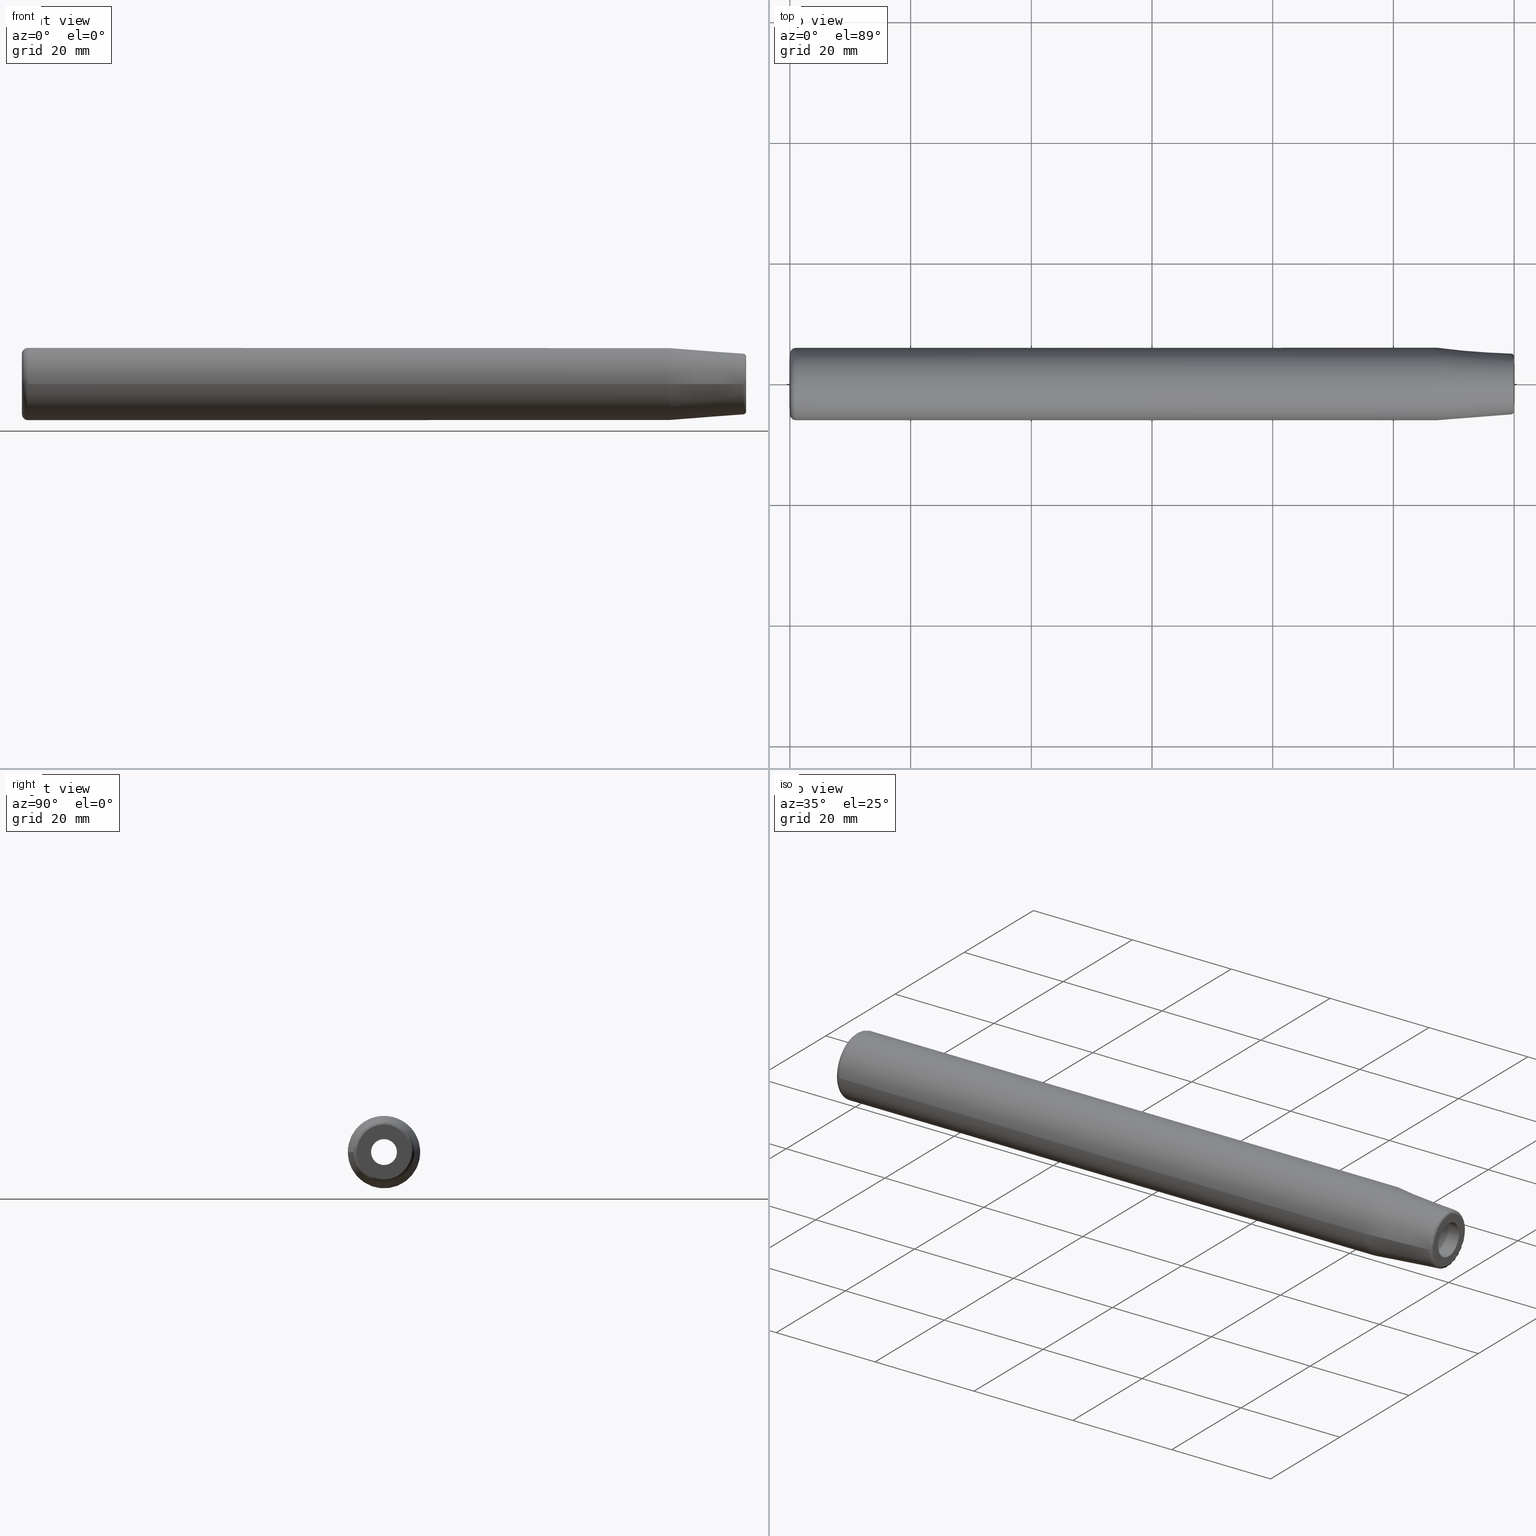
[diagram: canonical four-view strip — front | top / right | iso, engineering-drawing reading convention]
A machine part, canonical four-view strip (front | top / right | iso — engineering-drawing reading convention). The complete STEP part file that produces these views, byte-faithful:
ISO-10303-21;
HEADER;
/* Generated by software containing ST-Developer
 * from STEP Tools, Inc. (www.steptools.com) 
 */

FILE_DESCRIPTION(
/* description */ (''),
/* implementation_level */ '2;1');

FILE_NAME(
/* name */ 
'\\\\SSKT-NAS\\Lab-Data\\\X2\C5F0AD6CC18C\X0\\\DRAWING_3D\\1. \X2\C778BCA4D130\X0\\\
4. LAY-OUT\\OVERSEAS-ORDERS\\SAB\\SHRINK FIT HOLDER\\SFH\\ST TYPE\\VS0
13M.stp',
/* time_stamp */ '2023-06-20T09:31:37+09:00',
/* author */ ('YSH'),
/* organization */ (''),
/* preprocessor_version */ 'ST-DEVELOPER v18.1',
/* originating_system */ 'Autodesk Inventor 2022',
/* authorisation */ '');

FILE_SCHEMA (('AUTOMOTIVE_DESIGN { 1 0 10303 214 3 1 1 }'));
ENDSEC;

DATA;
#10=MECHANICAL_DESIGN_GEOMETRIC_PRESENTATION_REPRESENTATION('',(#13),#381);
#11=SHAPE_REPRESENTATION_RELATIONSHIP('SRR','None',#388,#12);
#12=ADVANCED_BREP_SHAPE_REPRESENTATION('',(#14),#380);
#13=STYLED_ITEM('',(#397),#14);
#14=MANIFOLD_SOLID_BREP('\X2\C194B9ACB4DC\X0\1',#198);
#15=CYLINDRICAL_SURFACE('',#237,6.);
#16=CYLINDRICAL_SURFACE('',#238,2.15);
#17=CYLINDRICAL_SURFACE('',#244,3.5);
#18=CYLINDRICAL_SURFACE('',#245,3.49999999999999);
#19=CYLINDRICAL_SURFACE('',#249,3.);
#20=FACE_BOUND('',#60,.T.);
#21=FACE_BOUND('',#63,.T.);
#22=FACE_BOUND('',#70,.T.);
#23=FACE_BOUND('',#73,.T.);
#24=PLANE('',#228);
#25=PLANE('',#235);
#26=PLANE('',#248);
#27=PLANE('',#251);
#28=LINE('',#334,#35);
#29=LINE('',#351,#36);
#30=LINE('',#356,#37);
#31=LINE('',#363,#38);
#32=LINE('',#365,#39);
#33=LINE('',#370,#40);
#34=LINE('',#375,#41);
#35=VECTOR('',#266,5.5);
#36=VECTOR('',#289,6.);
#37=VECTOR('',#294,2.15);
#38=VECTOR('',#303,1.75);
#39=VECTOR('',#306,3.5);
#40=VECTOR('',#311,3.49999999999999);
#41=VECTOR('',#318,3.);
#42=CONICAL_SURFACE('',#226,5.5,0.0785398163397448);
#43=CONICAL_SURFACE('',#242,1.75,1.02974425867665);
#44=FACE_OUTER_BOUND('',#57,.T.);
#45=FACE_OUTER_BOUND('',#58,.T.);
#46=FACE_OUTER_BOUND('',#59,.T.);
#47=FACE_OUTER_BOUND('',#61,.T.);
#48=FACE_OUTER_BOUND('',#62,.T.);
#49=FACE_OUTER_BOUND('',#64,.T.);
#50=FACE_OUTER_BOUND('',#65,.T.);
#51=FACE_OUTER_BOUND('',#66,.T.);
#52=FACE_OUTER_BOUND('',#67,.T.);
#53=FACE_OUTER_BOUND('',#68,.T.);
#54=FACE_OUTER_BOUND('',#69,.T.);
#55=FACE_OUTER_BOUND('',#71,.T.);
#56=FACE_OUTER_BOUND('',#72,.T.);
#57=EDGE_LOOP('',(#133,#134,#135,#136,#137));
#58=EDGE_LOOP('',(#138,#139,#140,#141,#142));
#59=EDGE_LOOP('',(#143));
#60=EDGE_LOOP('',(#144));
#61=EDGE_LOOP('',(#145,#146,#147,#148,#149));
#62=EDGE_LOOP('',(#150));
#63=EDGE_LOOP('',(#151));
#64=EDGE_LOOP('',(#152,#153,#154,#155,#156));
#65=EDGE_LOOP('',(#157,#158,#159,#160,#161));
#66=EDGE_LOOP('',(#162,#163,#164,#165,#166));
#67=EDGE_LOOP('',(#167,#168,#169,#170));
#68=EDGE_LOOP('',(#171,#172,#173,#174));
#69=EDGE_LOOP('',(#175));
#70=EDGE_LOOP('',(#176));
#71=EDGE_LOOP('',(#177,#178,#179,#180));
#72=EDGE_LOOP('',(#181));
#73=EDGE_LOOP('',(#182));
#74=CIRCLE('',#222,4.5378047541709);
#75=CIRCLE('',#223,0.5);
#76=CIRCLE('',#224,5.03626342103746);
#77=CIRCLE('',#225,5.03626342103746);
#78=CIRCLE('',#227,6.);
#79=CIRCLE('',#229,3.);
#80=CIRCLE('',#231,6.);
#81=CIRCLE('',#232,6.);
#82=CIRCLE('',#233,1.);
#83=CIRCLE('',#234,5.);
#84=CIRCLE('',#236,3.5);
#85=CIRCLE('',#239,2.15);
#86=CIRCLE('',#240,2.15);
#87=CIRCLE('',#241,2.15);
#88=CIRCLE('',#243,3.5);
#89=CIRCLE('',#246,3.49999999999999);
#90=CIRCLE('',#247,3.49999999999999);
#91=CIRCLE('',#250,2.99999999999999);
#92=VERTEX_POINT('',#325);
#93=VERTEX_POINT('',#327);
#94=VERTEX_POINT('',#329);
#95=VERTEX_POINT('',#333);
#96=VERTEX_POINT('',#337);
#97=VERTEX_POINT('',#340);
#98=VERTEX_POINT('',#341);
#99=VERTEX_POINT('',#344);
#100=VERTEX_POINT('',#348);
#101=VERTEX_POINT('',#353);
#102=VERTEX_POINT('',#355);
#103=VERTEX_POINT('',#357);
#104=VERTEX_POINT('',#361);
#105=VERTEX_POINT('',#367);
#106=VERTEX_POINT('',#369);
#107=VERTEX_POINT('',#374);
#108=EDGE_CURVE('',#92,#92,#74,.T.);
#109=EDGE_CURVE('',#92,#93,#75,.T.);
#110=EDGE_CURVE('',#93,#94,#76,.T.);
#111=EDGE_CURVE('',#94,#93,#77,.T.);
#112=EDGE_CURVE('',#94,#95,#28,.T.);
#113=EDGE_CURVE('',#95,#95,#78,.T.);
#114=EDGE_CURVE('',#96,#96,#79,.T.);
#115=EDGE_CURVE('',#97,#98,#80,.T.);
#116=EDGE_CURVE('',#98,#97,#81,.T.);
#117=EDGE_CURVE('',#97,#99,#82,.T.);
#118=EDGE_CURVE('',#99,#99,#83,.T.);
#119=EDGE_CURVE('',#100,#100,#84,.T.);
#120=EDGE_CURVE('',#95,#98,#29,.T.);
#121=EDGE_CURVE('',#101,#101,#85,.T.);
#122=EDGE_CURVE('',#101,#102,#30,.T.);
#123=EDGE_CURVE('',#103,#102,#86,.T.);
#124=EDGE_CURVE('',#102,#103,#87,.T.);
#125=EDGE_CURVE('',#104,#104,#88,.T.);
#126=EDGE_CURVE('',#104,#103,#31,.T.);
#127=EDGE_CURVE('',#100,#104,#32,.T.);
#128=EDGE_CURVE('',#105,#105,#89,.T.);
#129=EDGE_CURVE('',#105,#106,#33,.T.);
#130=EDGE_CURVE('',#106,#106,#90,.T.);
#131=EDGE_CURVE('',#96,#107,#34,.T.);
#132=EDGE_CURVE('',#107,#107,#91,.T.);
#133=ORIENTED_EDGE('',*,*,#108,.T.);
#134=ORIENTED_EDGE('',*,*,#109,.T.);
#135=ORIENTED_EDGE('',*,*,#110,.T.);
#136=ORIENTED_EDGE('',*,*,#111,.T.);
#137=ORIENTED_EDGE('',*,*,#109,.F.);
#138=ORIENTED_EDGE('',*,*,#111,.F.);
#139=ORIENTED_EDGE('',*,*,#112,.T.);
#140=ORIENTED_EDGE('',*,*,#113,.T.);
#141=ORIENTED_EDGE('',*,*,#112,.F.);
#142=ORIENTED_EDGE('',*,*,#110,.F.);
#143=ORIENTED_EDGE('',*,*,#108,.F.);
#144=ORIENTED_EDGE('',*,*,#114,.F.);
#145=ORIENTED_EDGE('',*,*,#115,.T.);
#146=ORIENTED_EDGE('',*,*,#116,.T.);
#147=ORIENTED_EDGE('',*,*,#117,.T.);
#148=ORIENTED_EDGE('',*,*,#118,.T.);
#149=ORIENTED_EDGE('',*,*,#117,.F.);
#150=ORIENTED_EDGE('',*,*,#118,.F.);
#151=ORIENTED_EDGE('',*,*,#119,.T.);
#152=ORIENTED_EDGE('',*,*,#113,.F.);
#153=ORIENTED_EDGE('',*,*,#120,.T.);
#154=ORIENTED_EDGE('',*,*,#115,.F.);
#155=ORIENTED_EDGE('',*,*,#116,.F.);
#156=ORIENTED_EDGE('',*,*,#120,.F.);
#157=ORIENTED_EDGE('',*,*,#121,.F.);
#158=ORIENTED_EDGE('',*,*,#122,.T.);
#159=ORIENTED_EDGE('',*,*,#123,.F.);
#160=ORIENTED_EDGE('',*,*,#124,.F.);
#161=ORIENTED_EDGE('',*,*,#122,.F.);
#162=ORIENTED_EDGE('',*,*,#125,.T.);
#163=ORIENTED_EDGE('',*,*,#126,.T.);
#164=ORIENTED_EDGE('',*,*,#123,.T.);
#165=ORIENTED_EDGE('',*,*,#124,.T.);
#166=ORIENTED_EDGE('',*,*,#126,.F.);
#167=ORIENTED_EDGE('',*,*,#119,.F.);
#168=ORIENTED_EDGE('',*,*,#127,.T.);
#169=ORIENTED_EDGE('',*,*,#125,.F.);
#170=ORIENTED_EDGE('',*,*,#127,.F.);
#171=ORIENTED_EDGE('',*,*,#128,.T.);
#172=ORIENTED_EDGE('',*,*,#129,.T.);
#173=ORIENTED_EDGE('',*,*,#130,.F.);
#174=ORIENTED_EDGE('',*,*,#129,.F.);
#175=ORIENTED_EDGE('',*,*,#130,.T.);
#176=ORIENTED_EDGE('',*,*,#121,.T.);
#177=ORIENTED_EDGE('',*,*,#114,.T.);
#178=ORIENTED_EDGE('',*,*,#131,.T.);
#179=ORIENTED_EDGE('',*,*,#132,.F.);
#180=ORIENTED_EDGE('',*,*,#131,.F.);
#181=ORIENTED_EDGE('',*,*,#128,.F.);
#182=ORIENTED_EDGE('',*,*,#132,.T.);
#183=TOROIDAL_SURFACE('',#221,4.5378047541709,0.5);
#184=TOROIDAL_SURFACE('',#230,5.,1.);
#185=ADVANCED_FACE('',(#44),#183,.T.);
#186=ADVANCED_FACE('',(#45),#42,.T.);
#187=ADVANCED_FACE('',(#46,#20),#24,.T.);
#188=ADVANCED_FACE('',(#47),#184,.T.);
#189=ADVANCED_FACE('',(#48,#21),#25,.T.);
#190=ADVANCED_FACE('',(#49),#15,.T.);
#191=ADVANCED_FACE('',(#50),#16,.F.);
#192=ADVANCED_FACE('',(#51),#43,.F.);
#193=ADVANCED_FACE('',(#52),#17,.F.);
#194=ADVANCED_FACE('',(#53),#18,.F.);
#195=ADVANCED_FACE('',(#54,#22),#26,.T.);
#196=ADVANCED_FACE('',(#55),#19,.F.);
#197=ADVANCED_FACE('',(#56,#23),#27,.T.);
#198=CLOSED_SHELL('',(#185,#186,#187,#188,#189,#190,#191,#192,#193,#194,
#195,#196,#197));
#199=DERIVED_UNIT_ELEMENT(#202,1.);
#200=DERIVED_UNIT_ELEMENT(#383,-3.);
#201=DIMENSIONAL_EXPONENTS(1.,0.,0.,0.,0.,0.,0.);
#202=(
CONVERSION_BASED_UNIT('gram',#204)
MASS_UNIT()
NAMED_UNIT(#201)
);
#203=(
MASS_UNIT()
NAMED_UNIT(*)
SI_UNIT(.KILO.,.GRAM.)
);
#204=MASS_MEASURE_WITH_UNIT(MASS_MEASURE(0.001),#203);
#205=DERIVED_UNIT((#199,#200));
#206=MEASURE_REPRESENTATION_ITEM('density measure',
POSITIVE_RATIO_MEASURE(1.),#205);
#207=PROPERTY_DEFINITION_REPRESENTATION(#212,#209);
#208=PROPERTY_DEFINITION_REPRESENTATION(#213,#210);
#209=REPRESENTATION('material name',(#211),#380);
#210=REPRESENTATION('density',(#206),#380);
#211=DESCRIPTIVE_REPRESENTATION_ITEM('\X2\C77CBC18\X0\','\X2\C77CBC18\X0\');
#212=PROPERTY_DEFINITION('material property','material name',#390);
#213=PROPERTY_DEFINITION('material property','density of part',#390);
#214=DATE_TIME_ROLE('creation_date');
#215=APPLIED_DATE_AND_TIME_ASSIGNMENT(#216,#214,(#390));
#216=DATE_AND_TIME(#217,#218);
#217=CALENDAR_DATE(2022,7,9);
#218=LOCAL_TIME(0,0,0.,#219);
#219=COORDINATED_UNIVERSAL_TIME_OFFSET(0,0,.BEHIND.);
#220=AXIS2_PLACEMENT_3D('placement',#323,#252,#253);
#221=AXIS2_PLACEMENT_3D('',#324,#254,#255);
#222=AXIS2_PLACEMENT_3D('',#326,#256,#257);
#223=AXIS2_PLACEMENT_3D('',#328,#258,#259);
#224=AXIS2_PLACEMENT_3D('',#330,#260,#261);
#225=AXIS2_PLACEMENT_3D('',#331,#262,#263);
#226=AXIS2_PLACEMENT_3D('',#332,#264,#265);
#227=AXIS2_PLACEMENT_3D('',#335,#267,#268);
#228=AXIS2_PLACEMENT_3D('',#336,#269,#270);
#229=AXIS2_PLACEMENT_3D('',#338,#271,#272);
#230=AXIS2_PLACEMENT_3D('',#339,#273,#274);
#231=AXIS2_PLACEMENT_3D('',#342,#275,#276);
#232=AXIS2_PLACEMENT_3D('',#343,#277,#278);
#233=AXIS2_PLACEMENT_3D('',#345,#279,#280);
#234=AXIS2_PLACEMENT_3D('',#346,#281,#282);
#235=AXIS2_PLACEMENT_3D('',#347,#283,#284);
#236=AXIS2_PLACEMENT_3D('',#349,#285,#286);
#237=AXIS2_PLACEMENT_3D('',#350,#287,#288);
#238=AXIS2_PLACEMENT_3D('',#352,#290,#291);
#239=AXIS2_PLACEMENT_3D('',#354,#292,#293);
#240=AXIS2_PLACEMENT_3D('',#358,#295,#296);
#241=AXIS2_PLACEMENT_3D('',#359,#297,#298);
#242=AXIS2_PLACEMENT_3D('',#360,#299,#300);
#243=AXIS2_PLACEMENT_3D('',#362,#301,#302);
#244=AXIS2_PLACEMENT_3D('',#364,#304,#305);
#245=AXIS2_PLACEMENT_3D('',#366,#307,#308);
#246=AXIS2_PLACEMENT_3D('',#368,#309,#310);
#247=AXIS2_PLACEMENT_3D('',#371,#312,#313);
#248=AXIS2_PLACEMENT_3D('',#372,#314,#315);
#249=AXIS2_PLACEMENT_3D('',#373,#316,#317);
#250=AXIS2_PLACEMENT_3D('',#376,#319,#320);
#251=AXIS2_PLACEMENT_3D('',#377,#321,#322);
#252=DIRECTION('axis',(0.,0.,1.));
#253=DIRECTION('refdir',(1.,0.,0.));
#254=DIRECTION('center_axis',(1.,0.,0.));
#255=DIRECTION('ref_axis',(0.,0.,-1.));
#256=DIRECTION('center_axis',(-1.,0.,0.));
#257=DIRECTION('ref_axis',(0.,-1.,1.83697019872103E-16));
#258=DIRECTION('center_axis',(0.,-1.,-1.22464679914735E-16));
#259=DIRECTION('ref_axis',(0.,-1.22464679914735E-16,1.));
#260=DIRECTION('center_axis',(1.,0.,0.));
#261=DIRECTION('ref_axis',(0.,-1.,3.06161699786838E-17));
#262=DIRECTION('center_axis',(1.,0.,0.));
#263=DIRECTION('ref_axis',(0.,-1.,3.06161699786838E-17));
#264=DIRECTION('center_axis',(-1.,0.,0.));
#265=DIRECTION('ref_axis',(0.,1.,0.));
#266=DIRECTION('',(-0.996917333733128,-0.0784590957278449,-9.60846804471011E-18));
#267=DIRECTION('center_axis',(1.,0.,0.));
#268=DIRECTION('ref_axis',(0.,0.,-1.));
#269=DIRECTION('center_axis',(1.,0.,0.));
#270=DIRECTION('ref_axis',(0.,0.,-1.));
#271=DIRECTION('center_axis',(1.,0.,0.));
#272=DIRECTION('ref_axis',(0.,0.,-1.));
#273=DIRECTION('center_axis',(1.,0.,0.));
#274=DIRECTION('ref_axis',(0.,0.,-1.));
#275=DIRECTION('center_axis',(-1.,0.,0.));
#276=DIRECTION('ref_axis',(0.,-1.,1.83697019872103E-16));
#277=DIRECTION('center_axis',(-1.,0.,0.));
#278=DIRECTION('ref_axis',(0.,-1.,1.83697019872103E-16));
#279=DIRECTION('center_axis',(0.,-1.,-1.22464679914735E-16));
#280=DIRECTION('ref_axis',(0.,-1.22464679914735E-16,1.));
#281=DIRECTION('center_axis',(1.,0.,0.));
#282=DIRECTION('ref_axis',(0.,-1.,1.83697019872103E-16));
#283=DIRECTION('center_axis',(-1.,0.,0.));
#284=DIRECTION('ref_axis',(0.,0.,1.));
#285=DIRECTION('center_axis',(1.,0.,0.));
#286=DIRECTION('ref_axis',(0.,0.,1.));
#287=DIRECTION('center_axis',(1.,0.,0.));
#288=DIRECTION('ref_axis',(0.,1.,0.));
#289=DIRECTION('',(-1.,0.,0.));
#290=DIRECTION('center_axis',(1.,0.,0.));
#291=DIRECTION('ref_axis',(0.,0.,-1.));
#292=DIRECTION('center_axis',(-1.,0.,0.));
#293=DIRECTION('ref_axis',(0.,0.,-1.));
#294=DIRECTION('',(-1.,0.,0.));
#295=DIRECTION('center_axis',(1.,0.,0.));
#296=DIRECTION('ref_axis',(0.,0.,-1.));
#297=DIRECTION('center_axis',(1.,0.,0.));
#298=DIRECTION('ref_axis',(0.,0.,-1.));
#299=DIRECTION('center_axis',(-1.,0.,0.));
#300=DIRECTION('ref_axis',(0.,0.,1.));
#301=DIRECTION('center_axis',(-1.,0.,0.));
#302=DIRECTION('ref_axis',(0.,0.,1.));
#303=DIRECTION('',(0.515038074910054,1.04972719113862E-16,0.857167300702112));
#304=DIRECTION('center_axis',(-1.,0.,0.));
#305=DIRECTION('ref_axis',(0.,0.,1.));
#306=DIRECTION('',(1.,0.,0.));
#307=DIRECTION('center_axis',(1.,0.,0.));
#308=DIRECTION('ref_axis',(0.,1.,0.));
#309=DIRECTION('center_axis',(1.,0.,0.));
#310=DIRECTION('ref_axis',(0.,0.,-1.));
#311=DIRECTION('',(-1.,0.,0.));
#312=DIRECTION('center_axis',(1.,0.,0.));
#313=DIRECTION('ref_axis',(0.,0.,-1.));
#314=DIRECTION('center_axis',(1.,0.,0.));
#315=DIRECTION('ref_axis',(0.,0.,-1.));
#316=DIRECTION('center_axis',(1.,0.,0.));
#317=DIRECTION('ref_axis',(0.,1.,0.));
#318=DIRECTION('',(-1.,0.,0.));
#319=DIRECTION('center_axis',(1.,0.,0.));
#320=DIRECTION('ref_axis',(0.,0.,-1.));
#321=DIRECTION('center_axis',(-1.,0.,0.));
#322=DIRECTION('ref_axis',(0.,0.,1.));
#323=CARTESIAN_POINT('',(0.,0.,0.));
#324=CARTESIAN_POINT('Origin',(119.5,0.,0.));
#325=CARTESIAN_POINT('',(120.,-5.55720806735103E-16,4.5378047541709));
#326=CARTESIAN_POINT('Origin',(120.,0.,0.));
#327=CARTESIAN_POINT('',(119.539229547864,-6.16764387823642E-16,5.03626342103746));
#328=CARTESIAN_POINT('Origin',(119.5,-5.55720806735103E-16,4.5378047541709));
#329=CARTESIAN_POINT('',(119.539229547864,-5.03626342103746,-6.16764387823643E-16));
#330=CARTESIAN_POINT('Origin',(119.539229547864,0.,-7.70955484779553E-16));
#331=CARTESIAN_POINT('Origin',(119.539229547864,0.,-7.70955484779553E-16));
#332=CARTESIAN_POINT('Origin',(113.646897631913,0.,0.));
#333=CARTESIAN_POINT('',(107.293795263825,-6.,-7.34788079488412E-16));
#334=CARTESIAN_POINT('',(113.646897631913,-5.5,-6.73555739531044E-16));
#335=CARTESIAN_POINT('Origin',(107.293795263825,0.,0.));
#336=CARTESIAN_POINT('Origin',(120.,3.,0.));
#337=CARTESIAN_POINT('',(120.,-3.,-3.67394039744205E-16));
#338=CARTESIAN_POINT('Origin',(120.,0.,0.));
#339=CARTESIAN_POINT('Origin',(0.999999999999996,0.,0.));
#340=CARTESIAN_POINT('',(0.999999999999996,-7.34788079488412E-16,6.));
#341=CARTESIAN_POINT('',(0.999999999999996,-6.,-7.34788079488412E-16));
#342=CARTESIAN_POINT('Origin',(0.999999999999996,0.,0.));
#343=CARTESIAN_POINT('Origin',(0.999999999999996,0.,0.));
#344=CARTESIAN_POINT('',(0.,-6.12323399573677E-16,5.));
#345=CARTESIAN_POINT('Origin',(0.999999999999996,-6.12323399573677E-16,
5.));
#346=CARTESIAN_POINT('Origin',(0.,0.,0.));
#347=CARTESIAN_POINT('Origin',(0.,6.,0.));
#348=CARTESIAN_POINT('',(4.44089209850063E-15,-4.28626379701574E-16,-3.5));
#349=CARTESIAN_POINT('Origin',(0.,0.,0.));
#350=CARTESIAN_POINT('Origin',(53.6468976319126,0.,0.));
#351=CARTESIAN_POINT('',(53.6468976319126,-6.,-7.34788079488412E-16));
#352=CARTESIAN_POINT('Origin',(-37.1940592603449,0.,0.));
#353=CARTESIAN_POINT('',(84.,-2.63299061816681E-16,2.15));
#354=CARTESIAN_POINT('Origin',(84.,0.,0.));
#355=CARTESIAN_POINT('',(70.8111618356872,-2.63299061816681E-16,2.15));
#356=CARTESIAN_POINT('',(-37.1940592603449,-2.63299061816681E-16,2.15));
#357=CARTESIAN_POINT('',(70.8111618356872,-2.63299061816682E-16,-2.15000000000001));
#358=CARTESIAN_POINT('Origin',(70.8111618356872,0.,0.));
#359=CARTESIAN_POINT('Origin',(70.8111618356872,0.,0.));
#360=CARTESIAN_POINT('Origin',(71.0515060832982,0.,0.));
#361=CARTESIAN_POINT('',(70.,-4.28626379701574E-16,-3.5));
#362=CARTESIAN_POINT('Origin',(70.,0.,0.));
#363=CARTESIAN_POINT('',(71.0515060832982,-2.14313189850787E-16,-1.75));
#364=CARTESIAN_POINT('Origin',(35.,0.,0.));
#365=CARTESIAN_POINT('',(35.,-4.28626379701574E-16,-3.5));
#366=CARTESIAN_POINT('Origin',(91.,0.,0.));
#367=CARTESIAN_POINT('',(98.,-3.49999999999999,-4.28626379701572E-16));
#368=CARTESIAN_POINT('Origin',(98.,0.,0.));
#369=CARTESIAN_POINT('',(84.,-3.49999999999999,-4.28626379701572E-16));
#370=CARTESIAN_POINT('',(91.,-3.49999999999999,-4.28626379701572E-16));
#371=CARTESIAN_POINT('Origin',(84.,0.,0.));
#372=CARTESIAN_POINT('Origin',(84.,0.,0.));
#373=CARTESIAN_POINT('Origin',(109.,0.,0.));
#374=CARTESIAN_POINT('',(98.,-3.,-3.67394039744205E-16));
#375=CARTESIAN_POINT('',(109.,-3.,-3.67394039744205E-16));
#376=CARTESIAN_POINT('Origin',(98.,0.,0.));
#377=CARTESIAN_POINT('Origin',(98.,3.49999999999999,0.));
#378=UNCERTAINTY_MEASURE_WITH_UNIT(LENGTH_MEASURE(0.01),#382,
'DISTANCE_ACCURACY_VALUE',
'Maximum model space distance between geometric entities at asserted c
onnectivities');
#379=UNCERTAINTY_MEASURE_WITH_UNIT(LENGTH_MEASURE(0.01),#382,
'DISTANCE_ACCURACY_VALUE',
'Maximum model space distance between geometric entities at asserted c
onnectivities');
#380=(
GEOMETRIC_REPRESENTATION_CONTEXT(3)
GLOBAL_UNCERTAINTY_ASSIGNED_CONTEXT((#378))
GLOBAL_UNIT_ASSIGNED_CONTEXT((#382,#384,#385))
REPRESENTATION_CONTEXT('','3D')
);
#381=(
GEOMETRIC_REPRESENTATION_CONTEXT(3)
GLOBAL_UNCERTAINTY_ASSIGNED_CONTEXT((#379))
GLOBAL_UNIT_ASSIGNED_CONTEXT((#382,#384,#385))
REPRESENTATION_CONTEXT('','3D')
);
#382=(
LENGTH_UNIT()
NAMED_UNIT(*)
SI_UNIT(.MILLI.,.METRE.)
);
#383=(
LENGTH_UNIT()
NAMED_UNIT(*)
SI_UNIT(.CENTI.,.METRE.)
);
#384=(
NAMED_UNIT(*)
PLANE_ANGLE_UNIT()
SI_UNIT($,.RADIAN.)
);
#385=(
NAMED_UNIT(*)
SI_UNIT($,.STERADIAN.)
SOLID_ANGLE_UNIT()
);
#386=SHAPE_DEFINITION_REPRESENTATION(#387,#388);
#387=PRODUCT_DEFINITION_SHAPE('',$,#390);
#388=SHAPE_REPRESENTATION('',(#220),#380);
#389=PRODUCT_DEFINITION_CONTEXT('part definition',#394,'design');
#390=PRODUCT_DEFINITION('LO-ST12-SFH6-120','LO-ST12-SFH6-120',#391,#389);
#391=PRODUCT_DEFINITION_FORMATION('',$,#396);
#392=PRODUCT_RELATED_PRODUCT_CATEGORY('LO-ST12-SFH6-120',
'LO-ST12-SFH6-120',(#396));
#393=APPLICATION_PROTOCOL_DEFINITION('international standard',
'automotive_design',2009,#394);
#394=APPLICATION_CONTEXT(
'Core Data for Automotive Mechanical Design Process');
#395=PRODUCT_CONTEXT('part definition',#394,'mechanical');
#396=PRODUCT('LO-ST12-SFH6-120','LO-ST12-SFH6-120',$,(#395));
#397=PRESENTATION_STYLE_ASSIGNMENT((#398));
#398=SURFACE_STYLE_USAGE(.BOTH.,#401);
#399=SURFACE_STYLE_RENDERING_WITH_PROPERTIES($,#405,(#400));
#400=SURFACE_STYLE_TRANSPARENT(0.339999973773956);
#401=SURFACE_SIDE_STYLE('',(#402,#399));
#402=SURFACE_STYLE_FILL_AREA(#403);
#403=FILL_AREA_STYLE('',(#404));
#404=FILL_AREA_STYLE_COLOUR('',#405);
#405=COLOUR_RGB('',0.925490196078431,0.945098039215686,0.937254901960784);
ENDSEC;
END-ISO-10303-21;
